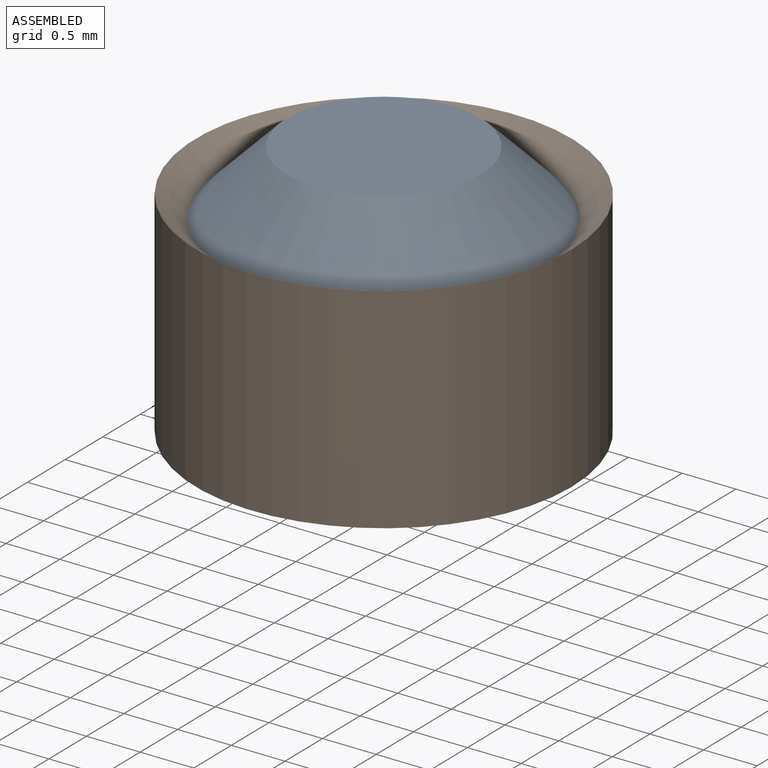
[diagram: assembled view]
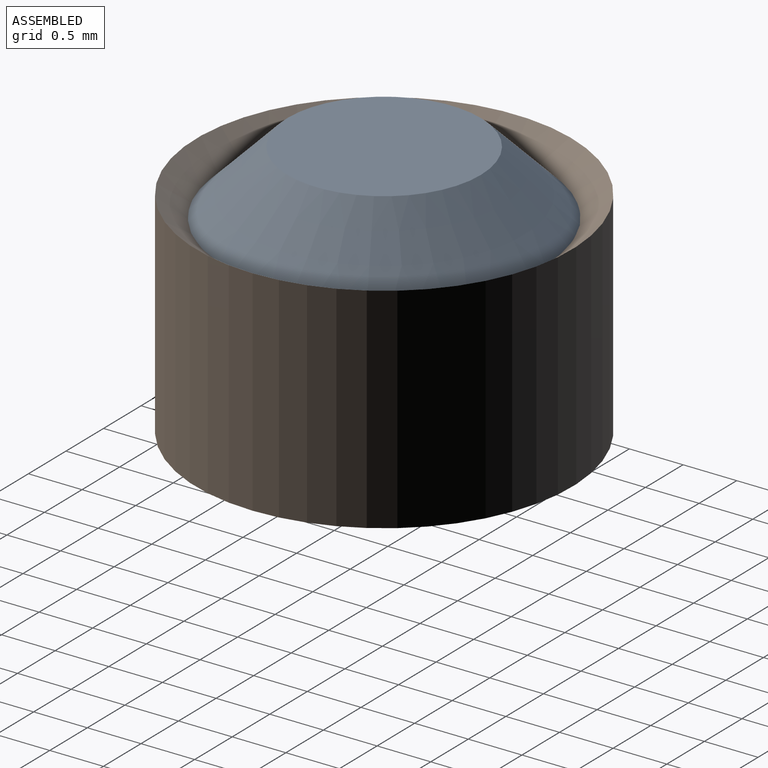
[diagram: assembled view, second angle]
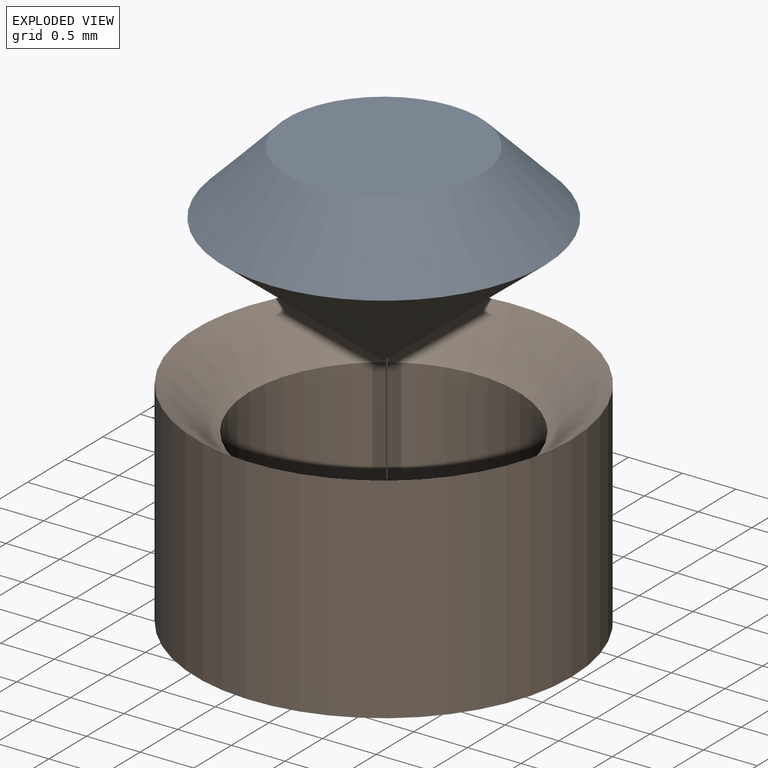
[diagram: exploded view]
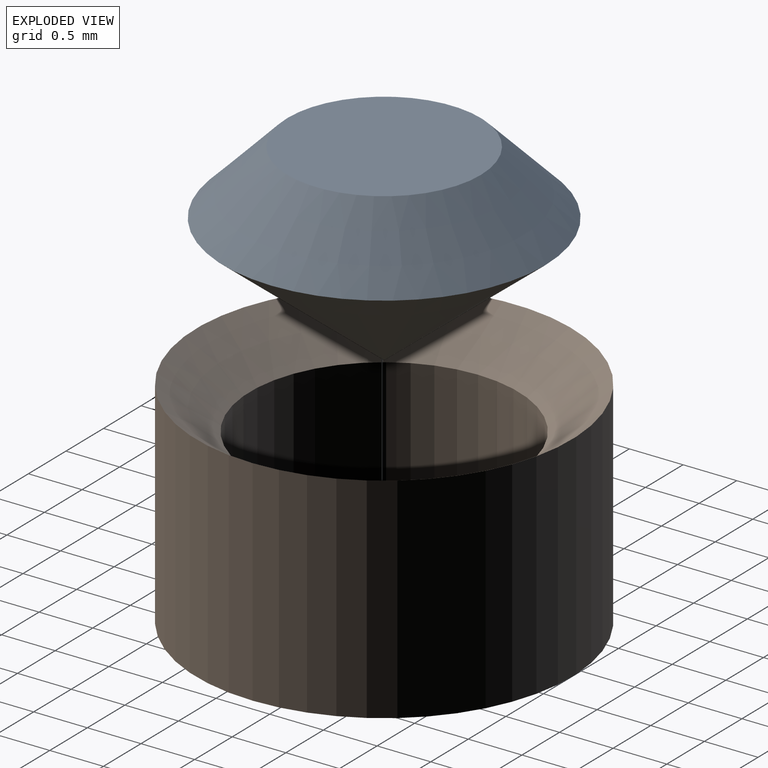
[diagram: exploded view, second angle]
ASSEMBLY  parts=2 mates=2
PART A: 3 faces, bbox 3x3x1.8 mm
  f0: plane 1.8x1.8mm, normal (0,0,1), area 2.5mm2, adj f2
  f1: cone r=0mm half-angle=51.3deg, axis (0,0,1), area 9.1mm2, adj f2
  f2: cone r=1.5mm half-angle=45deg, axis (0,0,-1), area 6.4mm2, adj f0,f1
PART B: 4 faces, bbox 3.5x3.5x2 mm
  f0: cylinder r=1.25mm len=2.5mm, axis (0,0,-1), area 12.6mm2, adj f2,f3
  f1: cylinder r=1.75mm len=3.5mm, axis (0,0,-1), area 22mm2, adj f2,f3
  f2: plane 3.5x3.5mm, normal (0,0,-1), area 4.7mm2, adj f0,f1
  f3: cone r=0mm half-angle=51.3deg, axis (0,0,1), area 6mm2, adj f0,f1
PLACE A rot(axis=(0,0,1),90deg) t=(-1.23,0.36,0.42)mm
PLACE B t=(-1.23,0.36,-0.18)mm fixed
MATE fastened A.f1 <-> B.f3  axis (0,0,-1) through (-1.23,0.36,1.62)mm
MATE slider A.f1 <-> B.f3  axis (0,0,-1) through (-1.23,0.36,1.62)mm
